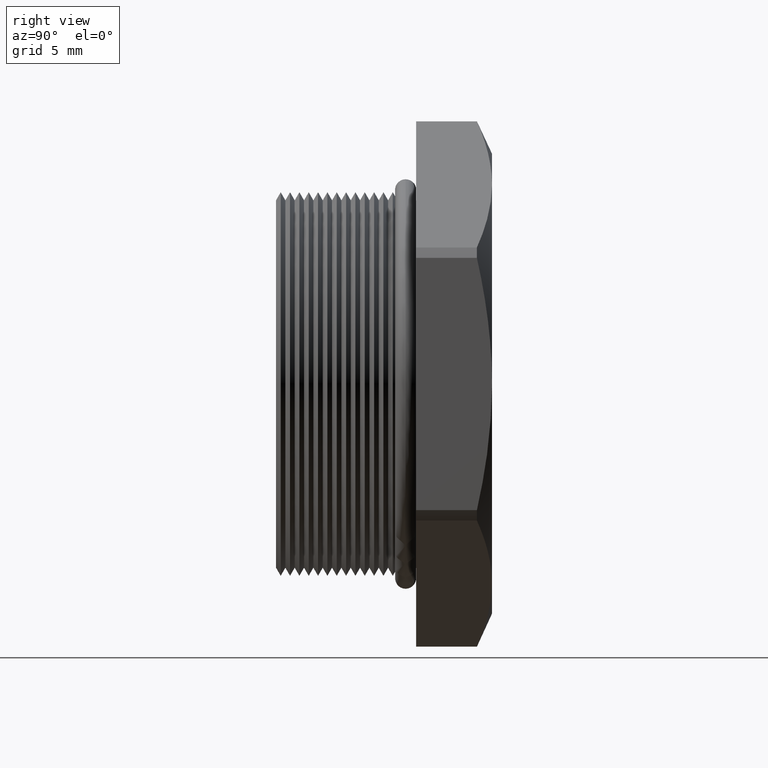
[diagram: clean part render]
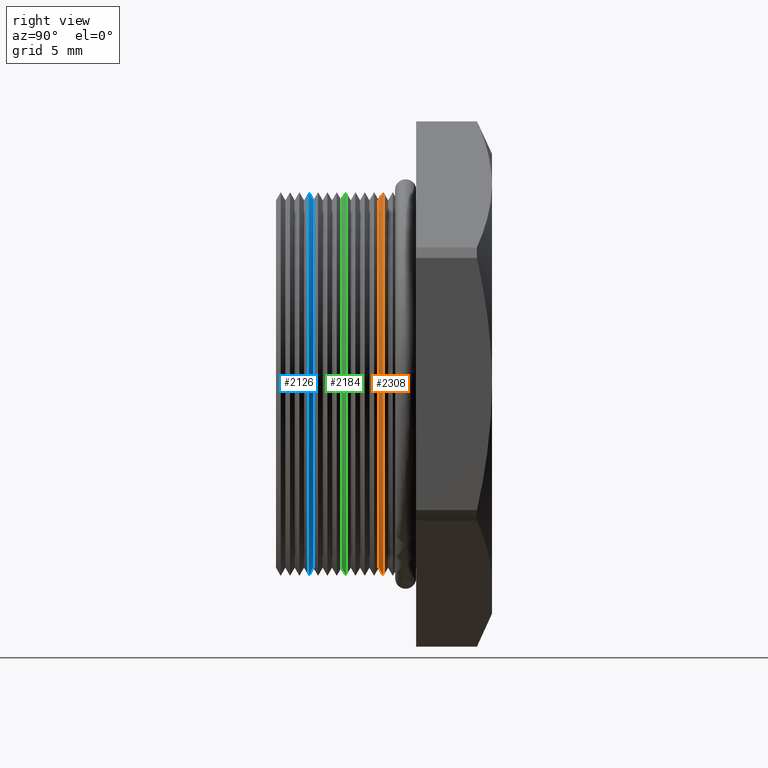
[diagram: same view with three faces highlighted in distinct colors, each labeled with its STEP entity id]
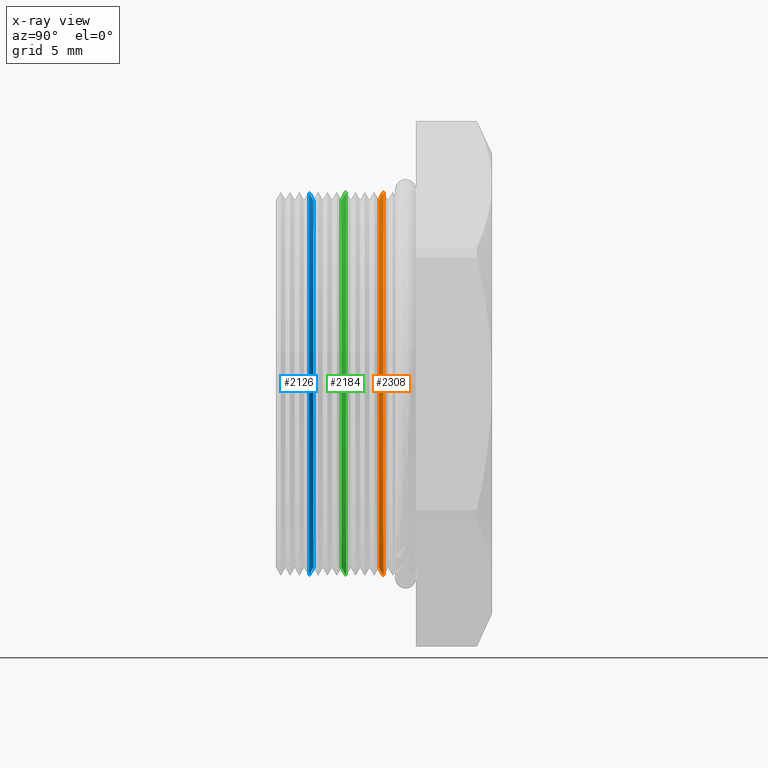
[diagram: x-ray of the same camera — body ghosted, the three highlighted faces saturated]
A machine part, right view with three faces highlighted in distinct colors.
The next image is the same camera in x-ray (body ghosted, the three faces saturated) — at least one of them is partly hidden behind the body in this view.
Their STEP definitions:

[orange] entity #2308 — the highlighted conical surface has half-angle 60 deg.
#2228 = EDGE_LOOP ( 'NONE', ( #2386, #2309, #2312, #2315 ) ) ;
#2308 = ADVANCED_FACE ( 'NONE', ( #4819 ), #4818, .T. ) ;
#2309 = ORIENTED_EDGE ( 'NONE', *, *, #2310, .T. ) ;
#2310 = EDGE_CURVE ( 'NONE', #2389, #2311, #4813, .T. ) ;
#2311 = VERTEX_POINT ( 'NONE', #4809 ) ;
#2312 = ORIENTED_EDGE ( 'NONE', *, *, #2313, .F. ) ;
#2313 = EDGE_CURVE ( 'NONE', #2314, #2311, #4869, .T. ) ;
#2314 = VERTEX_POINT ( 'NONE', #4864 ) ;
#2315 = ORIENTED_EDGE ( 'NONE', *, *, #2316, .F. ) ;
#2316 = EDGE_CURVE ( 'NONE', #2388, #2314, #4863, .T. ) ;
#2386 = ORIENTED_EDGE ( 'NONE', *, *, #2387, .T. ) ;
#2387 = EDGE_CURVE ( 'NONE', #2388, #2389, #4972, .T. ) ;
#2388 = VERTEX_POINT ( 'NONE', #4967 ) ;
#2389 = VERTEX_POINT ( 'NONE', #4966 ) ;
#4809 = CARTESIAN_POINT ( 'NONE',  ( 0.0000000000000000000, 0.2215448905829479600, -0.3287738815610546400 ) ) ;
#4810 = DIRECTION ( 'NONE',  ( 1.060575238724907500E-016, 0.4999999999999991100, -0.8660254037844391500 ) ) ;
#4811 = VECTOR ( 'NONE', #4810, 39.37007874015748100 ) ;
#4812 = CARTESIAN_POINT ( 'NONE',  ( 4.026318816969965600E-017, 0.2215448905829479600, -0.3287738815610546400 ) ) ;
#4813 = LINE ( 'NONE', #4812, #4811 ) ;
#4814 = DIRECTION ( 'NONE',  ( 0.0000000000000000000, 0.0000000000000000000, 1.000000000000000000 ) ) ;
#4815 = DIRECTION ( 'NONE',  ( -0.0000000000000000000, 1.000000000000000000, -0.0000000000000000000 ) ) ;
#4816 = CARTESIAN_POINT ( 'NONE',  ( 0.0000000000000000000, 0.2215448905829479600, 0.0000000000000000000 ) ) ;
#4817 = AXIS2_PLACEMENT_3D ( 'NONE', #4816, #4815, #4814 ) ;
#4818 = CONICAL_SURFACE ( 'NONE', #4817, 0.3287738815610546400, 1.047197551196598700 ) ;
#4819 = FACE_OUTER_BOUND ( 'NONE', #2228, .T. ) ;
#4860 = DIRECTION ( 'NONE',  ( 0.0000000000000000000, 0.4999999999999991100, 0.8660254037844391500 ) ) ;
#4861 = VECTOR ( 'NONE', #4860, 39.37007874015748100 ) ;
#4862 = CARTESIAN_POINT ( 'NONE',  ( 0.0000000000000000000, 0.2215448905829479600, 0.3287738815610546400 ) ) ;
#4863 = LINE ( 'NONE', #4862, #4861 ) ;
#4864 = CARTESIAN_POINT ( 'NONE',  ( 4.026318816969966200E-017, 0.2215448905829479600, 0.3287738815610546400 ) ) ;
#4865 = DIRECTION ( 'NONE',  ( 0.0000000000000000000, 0.0000000000000000000, 1.000000000000000000 ) ) ;
#4866 = DIRECTION ( 'NONE',  ( -0.0000000000000000000, 1.000000000000000000, -0.0000000000000000000 ) ) ;
#4867 = CARTESIAN_POINT ( 'NONE',  ( 0.0000000000000000000, 0.2215448905829479600, 0.0000000000000000000 ) ) ;
#4868 = AXIS2_PLACEMENT_3D ( 'NONE', #4867, #4866, #4865 ) ;
#4869 = CIRCLE ( 'NONE', #4868, 0.3287738815610546400 ) ;
#4966 = CARTESIAN_POINT ( 'NONE',  ( 0.0000000000000000000, 0.2135925363558870700, -0.3150000000000000000 ) ) ;
#4967 = CARTESIAN_POINT ( 'NONE',  ( 3.857637417314162700E-017, 0.2135925363558870700, 0.3150000000000000000 ) ) ;
#4968 = DIRECTION ( 'NONE',  ( 0.0000000000000000000, 0.0000000000000000000, 1.000000000000000000 ) ) ;
#4969 = DIRECTION ( 'NONE',  ( -0.0000000000000000000, 1.000000000000000000, -0.0000000000000000000 ) ) ;
#4970 = CARTESIAN_POINT ( 'NONE',  ( 0.0000000000000000000, 0.2135925363558870700, 0.0000000000000000000 ) ) ;
#4971 = AXIS2_PLACEMENT_3D ( 'NONE', #4970, #4969, #4968 ) ;
#4972 = CIRCLE ( 'NONE', #4971, 0.3150000000000000000 ) ;

[blue] entity #2126 — the highlighted conical surface has half-angle 60 deg.
#2071 = ORIENTED_EDGE ( 'NONE', *, *, #2135, .T. ) ;
#2072 = ORIENTED_EDGE ( 'NONE', *, *, #2073, .F. ) ;
#2073 = EDGE_CURVE ( 'NONE', #2129, #2079, #4352, .T. ) ;
#2079 = VERTEX_POINT ( 'NONE', #4399 ) ;
#2082 = EDGE_CURVE ( 'NONE', #2129, #2083, #4394, .T. ) ;
#2083 = VERTEX_POINT ( 'NONE', #4389 ) ;
#2084 = ORIENTED_EDGE ( 'NONE', *, *, #2085, .T. ) ;
#2085 = EDGE_CURVE ( 'NONE', #2083, #2136, #4388, .T. ) ;
#2126 = ADVANCED_FACE ( 'NONE', ( #4496 ), #4493, .T. ) ;
#2127 = EDGE_LOOP ( 'NONE', ( #2128, #2084, #2071, #2072 ) ) ;
#2128 = ORIENTED_EDGE ( 'NONE', *, *, #2082, .T. ) ;
#2129 = VERTEX_POINT ( 'NONE', #4494 ) ;
#2135 = EDGE_CURVE ( 'NONE', #2136, #2079, #4473, .T. ) ;
#2136 = VERTEX_POINT ( 'NONE', #4468 ) ;
#4349 = DIRECTION ( 'NONE',  ( 0.0000000000000000000, -0.5000000000000008900, -0.8660254037844380400 ) ) ;
#4350 = VECTOR ( 'NONE', #4349, 39.37007874015748100 ) ;
#4351 = CARTESIAN_POINT ( 'NONE',  ( 0.0000000000000000000, 0.1014172448100089100, -0.3150000000000000000 ) ) ;
#4352 = LINE ( 'NONE', #4351, #4350 ) ;
#4385 = DIRECTION ( 'NONE',  ( 1.060575238724906300E-016, -0.5000000000000008900, 0.8660254037844380400 ) ) ;
#4386 = VECTOR ( 'NONE', #4385, 39.37007874015748100 ) ;
#4387 = CARTESIAN_POINT ( 'NONE',  ( 3.857637417314162700E-017, 0.1014172448100089100, 0.3150000000000000000 ) ) ;
#4388 = LINE ( 'NONE', #4387, #4386 ) ;
#4389 = CARTESIAN_POINT ( 'NONE',  ( 3.857637417314162700E-017, 0.1014172448100089100, 0.3150000000000000000 ) ) ;
#4390 = DIRECTION ( 'NONE',  ( 0.0000000000000000000, 0.0000000000000000000, -1.000000000000000000 ) ) ;
#4391 = DIRECTION ( 'NONE',  ( 0.0000000000000000000, -1.000000000000000000, 0.0000000000000000000 ) ) ;
#4392 = CARTESIAN_POINT ( 'NONE',  ( 0.0000000000000000000, 0.1014172448100089100, 0.0000000000000000000 ) ) ;
#4393 = AXIS2_PLACEMENT_3D ( 'NONE', #4392, #4391, #4390 ) ;
#4394 = CIRCLE ( 'NONE', #4393, 0.3150000000000000000 ) ;
#4399 = CARTESIAN_POINT ( 'NONE',  ( 0.0000000000000000000, 0.09346489058294796300, -0.3287738815610546400 ) ) ;
#4468 = CARTESIAN_POINT ( 'NONE',  ( 4.026318816969966200E-017, 0.09346489058294796300, 0.3287738815610546400 ) ) ;
#4469 = DIRECTION ( 'NONE',  ( 0.0000000000000000000, 0.0000000000000000000, 1.000000000000000000 ) ) ;
#4470 = DIRECTION ( 'NONE',  ( -0.0000000000000000000, 1.000000000000000000, -0.0000000000000000000 ) ) ;
#4471 = CARTESIAN_POINT ( 'NONE',  ( 0.0000000000000000000, 0.09346489058294796300, 0.0000000000000000000 ) ) ;
#4472 = AXIS2_PLACEMENT_3D ( 'NONE', #4471, #4470, #4469 ) ;
#4473 = CIRCLE ( 'NONE', #4472, 0.3287738815610546400 ) ;
#4490 = DIRECTION ( 'NONE',  ( 0.0000000000000000000, 0.0000000000000000000, -1.000000000000000000 ) ) ;
#4491 = DIRECTION ( 'NONE',  ( 0.0000000000000000000, -1.000000000000000000, 0.0000000000000000000 ) ) ;
#4492 = AXIS2_PLACEMENT_3D ( 'NONE', #4495, #4491, #4490 ) ;
#4493 = CONICAL_SURFACE ( 'NONE', #4492, 0.3150000000000000000, 1.047197551196596700 ) ;
#4494 = CARTESIAN_POINT ( 'NONE',  ( 0.0000000000000000000, 0.1014172448100089100, -0.3150000000000000000 ) ) ;
#4495 = CARTESIAN_POINT ( 'NONE',  ( 0.0000000000000000000, 0.1014172448100089100, 0.0000000000000000000 ) ) ;
#4496 = FACE_OUTER_BOUND ( 'NONE', #2127, .T. ) ;

[green] entity #2184 — the highlighted conical surface has half-angle 60 deg.
#2105 = EDGE_CURVE ( 'NONE', #2106, #2107, #4411, .T. ) ;
#2106 = VERTEX_POINT ( 'NONE', #4406 ) ;
#2107 = VERTEX_POINT ( 'NONE', #4405 ) ;
#2108 = ORIENTED_EDGE ( 'NONE', *, *, #2109, .T. ) ;
#2109 = EDGE_CURVE ( 'NONE', #2107, #2110, #4466, .T. ) ;
#2110 = VERTEX_POINT ( 'NONE', #4462 ) ;
#2153 = EDGE_CURVE ( 'NONE', #2106, #2158, #4554, .T. ) ;
#2156 = ORIENTED_EDGE ( 'NONE', *, *, #2157, .F. ) ;
#2157 = EDGE_CURVE ( 'NONE', #2158, #2110, #4549, .T. ) ;
#2158 = VERTEX_POINT ( 'NONE', #4539 ) ;
#2159 = ORIENTED_EDGE ( 'NONE', *, *, #2153, .F. ) ;
#2165 = ORIENTED_EDGE ( 'NONE', *, *, #2105, .T. ) ;
#2184 = ADVANCED_FACE ( 'NONE', ( #4564 ), #4563, .T. ) ;
#2185 = EDGE_LOOP ( 'NONE', ( #2165, #2108, #2156, #2159 ) ) ;
#4405 = CARTESIAN_POINT ( 'NONE',  ( 0.0000000000000000000, 0.1495525363558870600, -0.3150000000000000000 ) ) ;
#4406 = CARTESIAN_POINT ( 'NONE',  ( 3.857637417314162700E-017, 0.1495525363558870600, 0.3150000000000000000 ) ) ;
#4407 = DIRECTION ( 'NONE',  ( 0.0000000000000000000, 0.0000000000000000000, 1.000000000000000000 ) ) ;
#4408 = DIRECTION ( 'NONE',  ( -0.0000000000000000000, 1.000000000000000000, -0.0000000000000000000 ) ) ;
#4409 = CARTESIAN_POINT ( 'NONE',  ( 0.0000000000000000000, 0.1495525363558870600, 0.0000000000000000000 ) ) ;
#4410 = AXIS2_PLACEMENT_3D ( 'NONE', #4409, #4408, #4407 ) ;
#4411 = CIRCLE ( 'NONE', #4410, 0.3150000000000000000 ) ;
#4462 = CARTESIAN_POINT ( 'NONE',  ( 0.0000000000000000000, 0.1575048905829479800, -0.3287738815610546400 ) ) ;
#4463 = DIRECTION ( 'NONE',  ( 1.060575238724907500E-016, 0.4999999999999991100, -0.8660254037844391500 ) ) ;
#4464 = VECTOR ( 'NONE', #4463, 39.37007874015748100 ) ;
#4465 = CARTESIAN_POINT ( 'NONE',  ( 4.026318816969965600E-017, 0.1575048905829479800, -0.3287738815610546400 ) ) ;
#4466 = LINE ( 'NONE', #4465, #4464 ) ;
#4539 = CARTESIAN_POINT ( 'NONE',  ( 4.026318816969966200E-017, 0.1575048905829479800, 0.3287738815610546400 ) ) ;
#4540 = DIRECTION ( 'NONE',  ( 0.0000000000000000000, 0.0000000000000000000, 1.000000000000000000 ) ) ;
#4541 = DIRECTION ( 'NONE',  ( -0.0000000000000000000, 1.000000000000000000, -0.0000000000000000000 ) ) ;
#4542 = CARTESIAN_POINT ( 'NONE',  ( 0.0000000000000000000, 0.1575048905829479800, 0.0000000000000000000 ) ) ;
#4543 = AXIS2_PLACEMENT_3D ( 'NONE', #4542, #4541, #4540 ) ;
#4549 = CIRCLE ( 'NONE', #4543, 0.3287738815610546400 ) ;
#4551 = DIRECTION ( 'NONE',  ( 0.0000000000000000000, 0.4999999999999991100, 0.8660254037844391500 ) ) ;
#4552 = VECTOR ( 'NONE', #4551, 39.37007874015748100 ) ;
#4553 = CARTESIAN_POINT ( 'NONE',  ( 0.0000000000000000000, 0.1575048905829479800, 0.3287738815610546400 ) ) ;
#4554 = LINE ( 'NONE', #4553, #4552 ) ;
#4561 = CARTESIAN_POINT ( 'NONE',  ( 0.0000000000000000000, 0.1575048905829479800, 0.0000000000000000000 ) ) ;
#4562 = AXIS2_PLACEMENT_3D ( 'NONE', #4561, #4621, #4620 ) ;
#4563 = CONICAL_SURFACE ( 'NONE', #4562, 0.3287738815610546400, 1.047197551196598700 ) ;
#4564 = FACE_OUTER_BOUND ( 'NONE', #2185, .T. ) ;
#4620 = DIRECTION ( 'NONE',  ( 0.0000000000000000000, 0.0000000000000000000, 1.000000000000000000 ) ) ;
#4621 = DIRECTION ( 'NONE',  ( -0.0000000000000000000, 1.000000000000000000, -0.0000000000000000000 ) ) ;